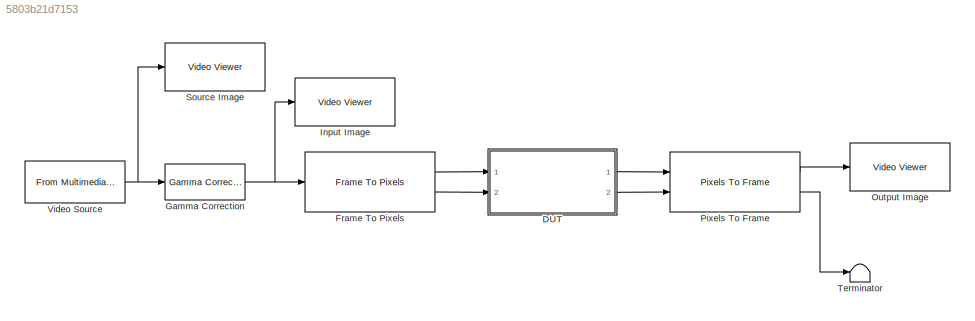
MODEL slx_5803b21d7153
KIND model
CONFIG AbsTol = auto
CONFIG FixedStep = auto
CONFIG MaxStep = auto
CONFIG MinStep = auto
CONFIG RelTol = 1e-3
CONFIG SampleTimeConstraint = Unconstrained
CONFIG Solver = FixedStepDiscrete
CONFIG SolverMode = SingleTasking
CONFIG SolverName = FixedStepDiscrete
CONFIG StartTime = 0.0
CONFIG StopTime = 320*240*100
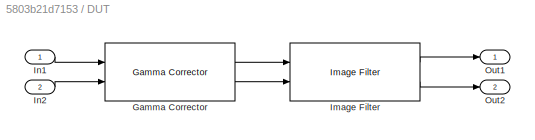
BLOCK [SubSystem] DUT
  Ports = [2, 2]
  RequestExecContextInheritance = off
  Variant = off
BLOCK [Reference] DUT/Gamma Corrector  REF=visionhdlconversions/Gamma Corrector
  Ports = [2, 2]
  SourceBlock = visionhdlconversions/Gamma Corrector
  SourceType = Gamma Corrector
BLOCK [Reference] DUT/Image Filter  REF=visionhdlfilter/Image Filter
  Ports = [2, 2]
  SourceBlock = visionhdlfilter/Image Filter
  SourceType = Image Filter
BLOCK [Inport] DUT/In1
  IconDisplay = Port number
BLOCK [Inport] DUT/In2
  IconDisplay = Port number
  Port = 2
BLOCK [Outport] DUT/Out1
  IconDisplay = Port number
BLOCK [Outport] DUT/Out2
  IconDisplay = Port number
  Port = 2
BLOCK [Reference] Frame To Pixels  REF=visionhdlio/Frame To Pixels
  Ports = [1, 2]
  SourceBlock = visionhdlio/Frame To Pixels
  SourceType = Frame To Pixels
BLOCK [Reference] Gamma Correction  REF=visionconversions/Gamma Correction
  Ports = [1, 1]
  SourceBlock = visionconversions/Gamma Correction
  SourceType = Gamma Correction
BLOCK [Reference] Input Image  REF=visionsinks/Video Viewer
  Ports = [1]
  SourceBlock = visionsinks/Video Viewer
  SourceType = Video Viewer
  UserDataPersistent = on
BLOCK [Reference] Output Image  REF=visionsinks/Video Viewer
  Ports = [1]
  SourceBlock = visionsinks/Video Viewer
  SourceType = Video Viewer
  UserDataPersistent = on
BLOCK [Reference] Pixels To Frame  REF=visionhdlio/Pixels To Frame
  Ports = [2, 2]
  SourceBlock = visionhdlio/Pixels To Frame
  SourceType = Pixels To Frame
BLOCK [Reference] Source Image  REF=visionsinks/Video Viewer
  Ports = [1]
  SourceBlock = visionsinks/Video Viewer
  SourceType = Video Viewer
  UserDataPersistent = on
BLOCK [Terminator] Terminator
BLOCK [Reference] Video Source  REF=dspvision/From Multimedia File
  Ports = [0, 1]
  SourceBlock = dspvision/From Multimedia File
  SourceType = From Multimedia File
LINE DUT/Gamma Corrector:1 -> DUT/Image Filter:1
LINE DUT/Gamma Corrector:2 -> DUT/Image Filter:2
LINE DUT/Image Filter:1 -> DUT/Out1:1
LINE DUT/Image Filter:2 -> DUT/Out2:1
LINE DUT/In1:1 -> DUT/Gamma Corrector:1
LINE DUT/In2:1 -> DUT/Gamma Corrector:2
LINE DUT:1 -> Pixels To Frame:1
LINE DUT:2 -> Pixels To Frame:2
LINE Frame To Pixels:1 -> DUT:1
LINE Frame To Pixels:2 -> DUT:2
NET Gamma Correction:1 -> Frame To Pixels:1, Input Image:1
LINE Pixels To Frame:1 -> Output Image:1
LINE Pixels To Frame:2 -> Terminator:1
NET Video Source:1 -> Gamma Correction:1, Source Image:1
note: NET lines group one-source signal fan-out (src -> all destinations, sorted); 1:1 wires keep LINE
